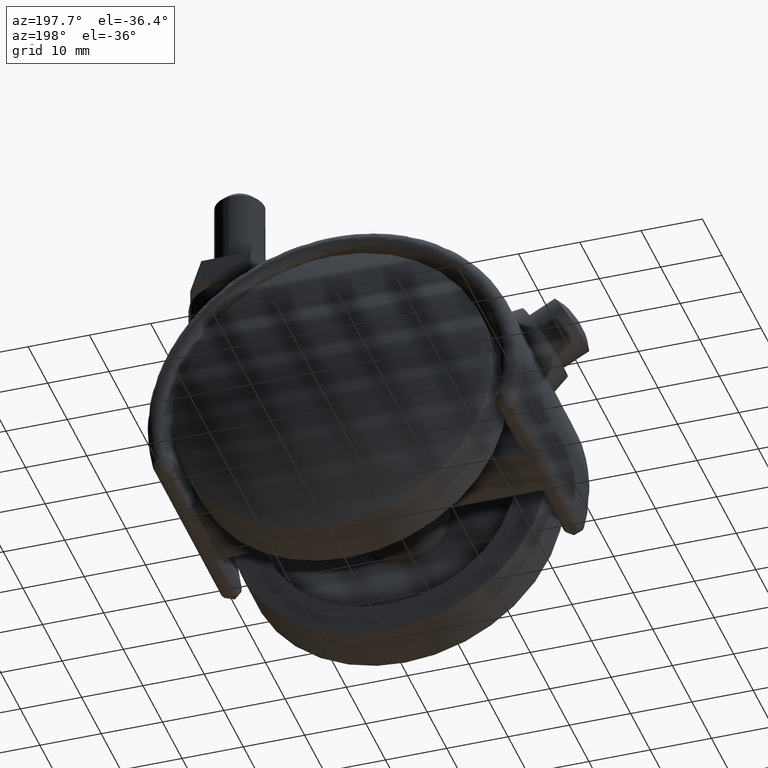
[diagram: clean part render]
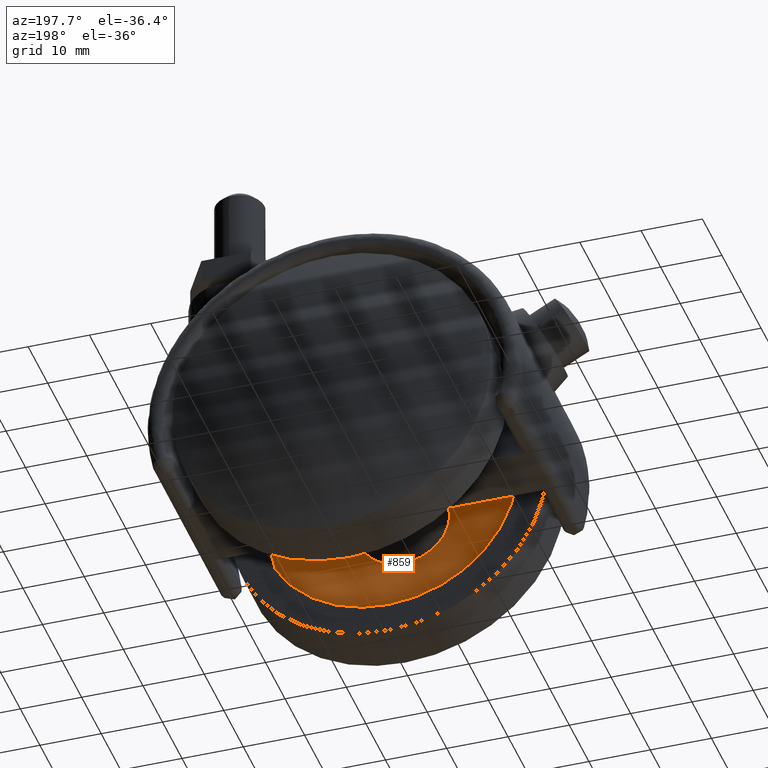
[diagram: same view with one face highlighted and labeled with its STEP entity id]
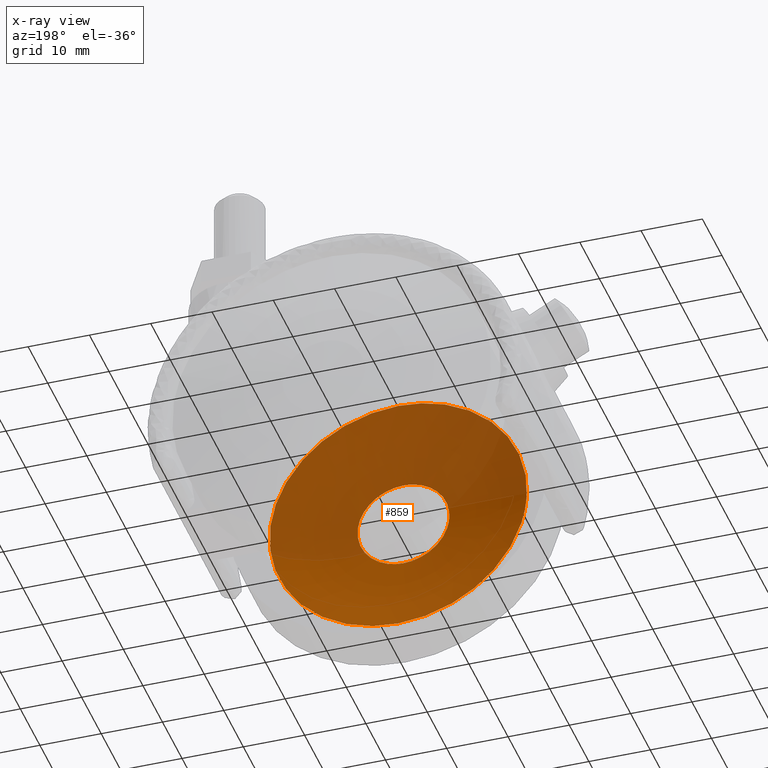
[diagram: x-ray of the same camera — body ghosted, the highlighted face saturated]
A machine part, auxiliary view. The second image highlights one B-rep face of the part: STEP entity #859.
The next image is the same camera in x-ray: the body ghosted, the highlighted face saturated — about 60% of this face is hidden behind the body in this view.
In plain terms, the highlighted face is a freeform B-spline surface patch.
Its self-contained STEP definition (entity closure, byte-faithful):
#256=CARTESIAN_POINT('',(7.447571447717403,-17.869045450421599,0.885256760010619));
#257=VERTEX_POINT('',#256);
#258=CARTESIAN_POINT('',(0.0,-17.869045450421599,-7.500000000000000));
#259=VERTEX_POINT('',#258);
#260=CARTESIAN_POINT('',(7.447571447717403,-17.869045450421602,0.885256760010619));
#261=CARTESIAN_POINT('',(7.500000000000000,-17.869045450421602,0.444180897475153));
#262=CARTESIAN_POINT('',(7.500000000000000,-17.869045450421599,0.0));
#263=CARTESIAN_POINT('',(7.500000000000000,-17.869045450421602,-7.500000000000000));
#264=CARTESIAN_POINT('',(0.0,-17.869045450421599,-7.500000000000000));
#272=(BOUNDED_CURVE()B_SPLINE_CURVE(2,(#260,#261,#262,#263,#264),.UNSPECIFIED.,.F.,.U.)B_SPLINE_CURVE_WITH_KNOTS((3,2,3),(0.229562473511790,0.250000000000000,0.500000000000000),.UNSPECIFIED.)CURVE()GEOMETRIC_REPRESENTATION_ITEM()RATIONAL_B_SPLINE_CURVE((0.956026754180331,0.976055948329132,1.0,0.707106781186547,1.0))REPRESENTATION_ITEM(''));
#273=EDGE_CURVE('',#257,#259,#272,.T.);
#275=CARTESIAN_POINT('',(-7.486011044637598,-17.869045450421599,-0.457863123174404));
#276=VERTEX_POINT('',#275);
#277=CARTESIAN_POINT('',(0.0,-17.869045450421599,-7.500000000000000));
#278=CARTESIAN_POINT('',(-7.055297245468959,-17.869045450421595,-7.500000000000001));
#279=CARTESIAN_POINT('',(-7.486011044637598,-17.869045450421599,-0.457863123174405));
#287=(BOUNDED_CURVE()B_SPLINE_CURVE(2,(#277,#278,#279),.UNSPECIFIED.,.F.,.U.)B_SPLINE_CURVE_WITH_KNOTS((3,3),(0.500000000000000,0.739333004806386),.UNSPECIFIED.)CURVE()GEOMETRIC_REPRESENTATION_ITEM()RATIONAL_B_SPLINE_CURVE((1.0,0.719603943415849,0.976072132896868))REPRESENTATION_ITEM(''));
#288=EDGE_CURVE('',#259,#276,#287,.T.);
#355=CARTESIAN_POINT('',(0.0,-17.869045450421599,7.500000000000000));
#356=VERTEX_POINT('',#355);
#357=CARTESIAN_POINT('',(0.0,-17.869045450421599,7.500000000000000));
#358=CARTESIAN_POINT('',(6.661308944482256,-17.869045450421599,7.499999999999998));
#359=CARTESIAN_POINT('',(7.447571447717403,-17.869045450421595,0.885256760010619));
#367=(BOUNDED_CURVE()B_SPLINE_CURVE(2,(#357,#358,#359),.UNSPECIFIED.,.F.,.U.)B_SPLINE_CURVE_WITH_KNOTS((3,3),(0.0,0.229562473511790),.UNSPECIFIED.)CURVE()GEOMETRIC_REPRESENTATION_ITEM()RATIONAL_B_SPLINE_CURVE((1.0,0.731050832857416,0.956026754180330))REPRESENTATION_ITEM(''));
#368=EDGE_CURVE('',#356,#257,#367,.T.);
#402=CARTESIAN_POINT('',(-7.486011044637598,-17.869045450421599,-0.457863123174404));
#403=CARTESIAN_POINT('',(-7.500000000000000,-17.869045450421599,-0.229144798813457));
#404=CARTESIAN_POINT('',(-7.500000000000000,-17.869045450421599,0.0));
#405=CARTESIAN_POINT('',(-7.500000000000000,-17.869045450421602,7.500000000000000));
#406=CARTESIAN_POINT('',(0.0,-17.869045450421599,7.500000000000000));
#414=(BOUNDED_CURVE()B_SPLINE_CURVE(2,(#402,#403,#404,#405,#406),.UNSPECIFIED.,.F.,.U.)B_SPLINE_CURVE_WITH_KNOTS((3,2,3),(0.739333004806385,0.750000000000000,1.0),.UNSPECIFIED.)CURVE()GEOMETRIC_REPRESENTATION_ITEM()RATIONAL_B_SPLINE_CURVE((0.976072132896866,0.987502837770698,1.0,0.707106781186547,1.0))REPRESENTATION_ITEM(''));
#415=EDGE_CURVE('',#276,#356,#414,.T.);
#442=CARTESIAN_POINT('',(20.853200299682619,-15.208513235725940,2.478716857834337));
#443=VERTEX_POINT('',#442);
#444=CARTESIAN_POINT('',(0.0,-15.208513235725951,-21.0));
#445=VERTEX_POINT('',#444);
#446=CARTESIAN_POINT('',(20.853200299682619,-15.208513235725945,2.478716857834337));
#447=CARTESIAN_POINT('',(20.999999999999996,-15.208513235725947,1.243705466769669));
#448=CARTESIAN_POINT('',(21.0,-15.208513235725951,0.0));
#449=CARTESIAN_POINT('',(21.000000000000007,-15.208513235725951,-21.000000000000007));
#450=CARTESIAN_POINT('',(0.0,-15.208513235725951,-21.0));
#458=(BOUNDED_CURVE()B_SPLINE_CURVE(2,(#446,#447,#448,#449,#450),.UNSPECIFIED.,.F.,.U.)B_SPLINE_CURVE_WITH_KNOTS((3,2,3),(0.229562490291466,0.250000000000000,0.500000000000000),.UNSPECIFIED.)CURVE()GEOMETRIC_REPRESENTATION_ITEM()RATIONAL_B_SPLINE_CURVE((0.956026787069185,0.976055967987745,1.0,0.707106781186547,1.0))REPRESENTATION_ITEM(''));
#459=EDGE_CURVE('',#443,#445,#458,.T.);
#500=CARTESIAN_POINT('',(-20.960832317673660,-15.208513235725629,-1.281993974136282));
#501=VERTEX_POINT('',#500);
#507=CARTESIAN_POINT('',(0.0,-15.208513235725951,-21.0));
#508=CARTESIAN_POINT('',(-19.754851346894032,-15.208513235725952,-21.0));
#509=CARTESIAN_POINT('',(-20.960832317673660,-15.208513235725635,-1.281993974136283));
#517=(BOUNDED_CURVE()B_SPLINE_CURVE(2,(#507,#508,#509),.UNSPECIFIED.,.F.,.U.)B_SPLINE_CURVE_WITH_KNOTS((3,3),(0.500000000000000,0.739333170970031),.UNSPECIFIED.)CURVE()GEOMETRIC_REPRESENTATION_ITEM()RATIONAL_B_SPLINE_CURVE((1.0,0.719603748743029,0.976072489017581))REPRESENTATION_ITEM(''));
#518=EDGE_CURVE('',#445,#501,#517,.T.);
#541=CARTESIAN_POINT('',(0.0,-15.208513235725951,21.0));
#542=VERTEX_POINT('',#541);
#543=CARTESIAN_POINT('',(0.0,-15.208513235725951,21.0));
#544=CARTESIAN_POINT('',(18.651666909438180,-15.208513235725952,21.000000000000007));
#545=CARTESIAN_POINT('',(20.853200299682619,-15.208513235725945,2.478716857834337));
#553=(BOUNDED_CURVE()B_SPLINE_CURVE(2,(#543,#544,#545),.UNSPECIFIED.,.F.,.U.)B_SPLINE_CURVE_WITH_KNOTS((3,3),(0.0,0.229562490291466),.UNSPECIFIED.)CURVE()GEOMETRIC_REPRESENTATION_ITEM()RATIONAL_B_SPLINE_CURVE((1.0,0.731050813198803,0.956026787069185))REPRESENTATION_ITEM(''));
#554=EDGE_CURVE('',#542,#443,#553,.T.);
#556=CARTESIAN_POINT('',(-20.960832317673660,-15.208513235725635,-1.281993974136283));
#557=CARTESIAN_POINT('',(-21.000000000000004,-15.208513235725947,-0.641595315675670));
#558=CARTESIAN_POINT('',(-21.0,-15.208513235725951,0.0));
#559=CARTESIAN_POINT('',(-21.000000000000007,-15.208513235725951,21.000000000000007));
#560=CARTESIAN_POINT('',(0.0,-15.208513235725951,21.0));
#568=(BOUNDED_CURVE()B_SPLINE_CURVE(2,(#556,#557,#558,#559,#560),.UNSPECIFIED.,.F.,.U.)B_SPLINE_CURVE_WITH_KNOTS((3,2,3),(0.739333170970031,0.750000000000000,1.0),.UNSPECIFIED.)CURVE()GEOMETRIC_REPRESENTATION_ITEM()RATIONAL_B_SPLINE_CURVE((0.976072489017581,0.987503032443518,1.0,0.707106781186547,1.0))REPRESENTATION_ITEM(''));
#569=EDGE_CURVE('',#501,#542,#568,.T.);
#823=CARTESIAN_POINT('',(-22.442854141167821,-11.099639735377410,-22.443350484033637));
#824=CARTESIAN_POINT('',(-11.499132907125174,-14.586260935888866,-22.998774440519199));
#825=CARTESIAN_POINT('',(11.499197716908311,-14.586260935888866,-22.998774440519199));
#826=CARTESIAN_POINT('',(22.442974520882423,-11.099601382819028,-22.443344374413915));
#827=CARTESIAN_POINT('',(-22.998290989337121,-14.586418973602942,-11.499399808081355));
#828=CARTESIAN_POINT('',(-11.790946001567059,-18.249999999999972,-11.791206768397030));
#829=CARTESIAN_POINT('',(11.791012456025809,-18.249999999999972,-11.791206768397030));
#830=CARTESIAN_POINT('',(22.998414193375826,-14.586378699183173,-11.499396600193803));
#831=CARTESIAN_POINT('',(-22.998290989337121,-14.586418973602942,11.499399697971223));
#832=CARTESIAN_POINT('',(-11.790946001567059,-18.249999999999972,11.791206655492759));
#833=CARTESIAN_POINT('',(11.791012456025809,-18.249999999999972,11.791206655492759));
#834=CARTESIAN_POINT('',(22.998414193375826,-14.586378699183173,11.499396490083699));
#835=CARTESIAN_POINT('',(-22.442854151547873,-11.099639800538615,22.443350279512263));
#836=CARTESIAN_POINT('',(-11.499132912575252,-14.586261004315149,22.998774231199587));
#837=CARTESIAN_POINT('',(11.499197722358419,-14.586261004315149,22.998774231199587));
#838=CARTESIAN_POINT('',(22.442974531262500,-11.099601447980174,22.443344169892562));
#846=(BOUNDED_SURFACE()B_SPLINE_SURFACE(2,2,((#823,#827,#831,#835),(#824,#828,#832,#836),(#825,#829,#833,#837),(#826,#830,#834,#838)),.UNSPECIFIED.,.F.,.F.,.U.)B_SPLINE_SURFACE_WITH_KNOTS((3,1,3),(3,1,3),(15.586123570346830,38.348289241479321,61.110583201503751),(15.585620165634150,38.348289241479307,61.110958099365227),.UNSPECIFIED.)GEOMETRIC_REPRESENTATION_ITEM()RATIONAL_B_SPLINE_SURFACE(((1.050752807766859,1.025375842668815,1.025375842668815,1.050752807280875),(1.025376965098044,1.0,1.0,1.025376964612061),(1.025376965098044,1.0,1.0,1.025376964612061),(1.050753093807120,1.025376128709076,1.025376128709076,1.050753093321137)))REPRESENTATION_ITEM('')SURFACE());
#847=ORIENTED_EDGE('',*,*,#554,.T.);
#848=ORIENTED_EDGE('',*,*,#459,.T.);
#849=ORIENTED_EDGE('',*,*,#518,.T.);
#850=ORIENTED_EDGE('',*,*,#569,.T.);
#851=EDGE_LOOP('',(#847,#848,#849,#850));
#852=FACE_OUTER_BOUND('',#851,.T.);
#853=ORIENTED_EDGE('',*,*,#288,.F.);
#854=ORIENTED_EDGE('',*,*,#273,.F.);
#855=ORIENTED_EDGE('',*,*,#368,.F.);
#856=ORIENTED_EDGE('',*,*,#415,.F.);
#857=EDGE_LOOP('',(#853,#854,#855,#856));
#858=FACE_BOUND('',#857,.T.);
#859=ADVANCED_FACE('',(#852,#858),#846,.F.);